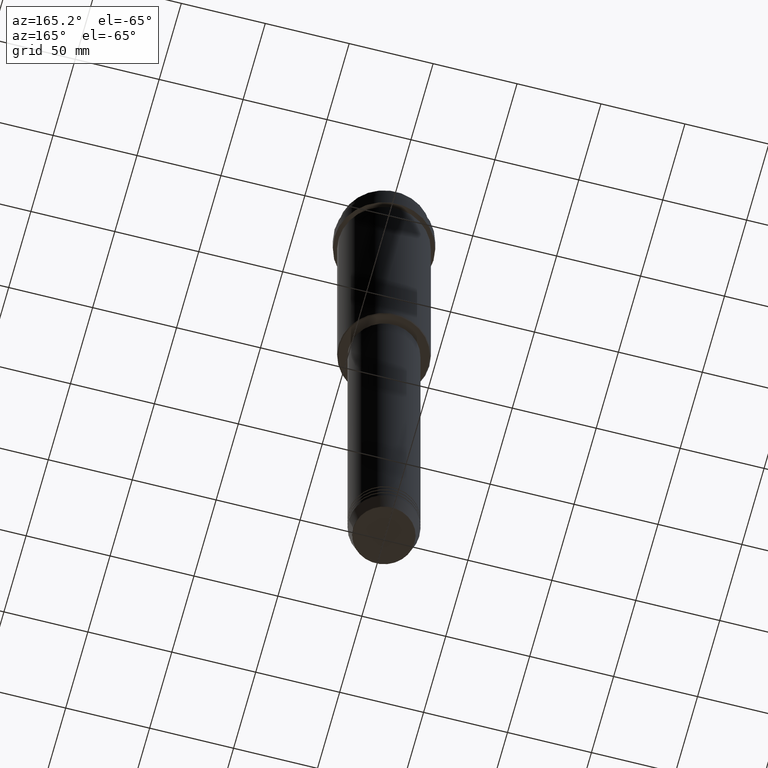
[diagram: clean part render]
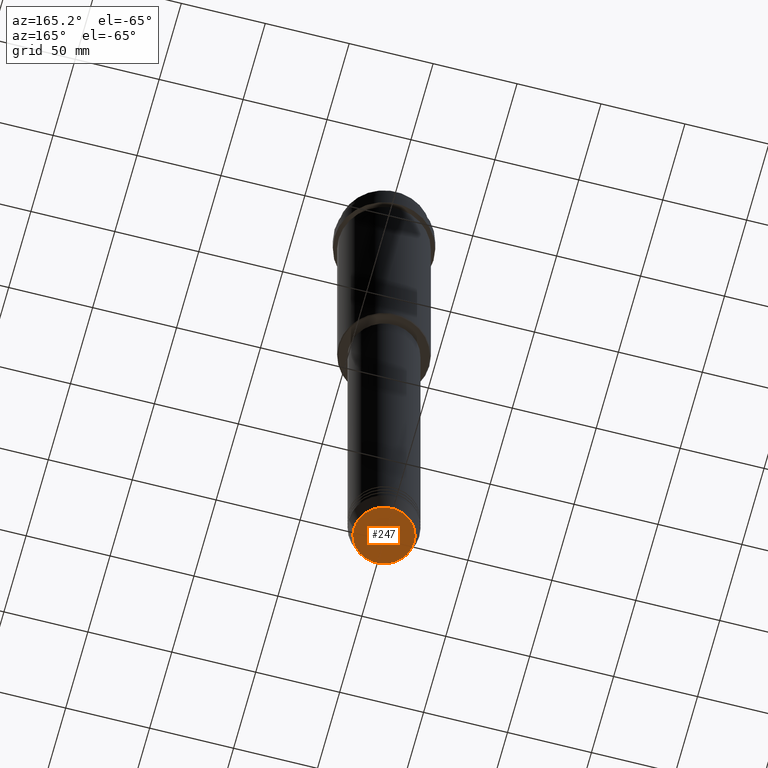
[diagram: same view with one face highlighted and labeled with its STEP entity id]
A machine part, auxiliary view. The second image highlights one B-rep face of the part: STEP entity #247.
In plain terms, the highlighted planar face has unit normal (0, -0, 1).
Its self-contained STEP definition (entity closure, byte-faithful):
#5 = EDGE_CURVE ( 'NONE', #1407, #331, #1352, .T. ) ;
#22 = DIRECTION ( 'NONE',  ( 1.000000000000000000, 0.000000000000000000, 0.000000000000000000 ) ) ;
#25 = DIRECTION ( 'NONE',  ( 1.000000000000000000, 0.000000000000000000, 0.000000000000000000 ) ) ;
#30 = DIRECTION ( 'NONE',  ( 0.000000000000000000, 0.000000000000000000, -1.000000000000000000 ) ) ;
#135 = CARTESIAN_POINT ( 'NONE',  ( 0.000000000000000000, 0.000000000000000000, -413.0000000000000000 ) ) ;
#171 = AXIS2_PLACEMENT_3D ( 'NONE', #370, #30, #25 ) ;
#197 = ORIENTED_EDGE ( 'NONE', *, *, #5, .T. ) ;
#247 = ADVANCED_FACE ( 'NONE', ( #1204 ), #1095, .F. ) ;
#331 = VERTEX_POINT ( 'NONE', #1402 ) ;
#347 = EDGE_CURVE ( 'NONE', #331, #1407, #582, .T. ) ;
#370 = CARTESIAN_POINT ( 'NONE',  ( 0.000000000000000000, 0.000000000000000000, -413.0000000000000000 ) ) ;
#390 = CARTESIAN_POINT ( 'NONE',  ( 17.93684458169929030, 0.000000000000000000, -413.0000000000000000 ) ) ;
#418 = CARTESIAN_POINT ( 'NONE',  ( 0.000000000000000000, 0.000000000000000000, -413.0000000000000000 ) ) ;
#568 = DIRECTION ( 'NONE',  ( 0.000000000000000000, -0.000000000000000000, 1.000000000000000000 ) ) ;
#570 = EDGE_LOOP ( 'NONE', ( #197, #1020 ) ) ;
#582 = CIRCLE ( 'NONE', #1027, 17.93684458169929030 ) ;
#1020 = ORIENTED_EDGE ( 'NONE', *, *, #347, .T. ) ;
#1027 = AXIS2_PLACEMENT_3D ( 'NONE', #418, #1158, #1380 ) ;
#1095 = PLANE ( 'NONE',  #1260 ) ;
#1158 = DIRECTION ( 'NONE',  ( 0.000000000000000000, 0.000000000000000000, -1.000000000000000000 ) ) ;
#1204 = FACE_OUTER_BOUND ( 'NONE', #570, .T. ) ;
#1260 = AXIS2_PLACEMENT_3D ( 'NONE', #135, #568, #22 ) ;
#1352 = CIRCLE ( 'NONE', #171, 17.93684458169929030 ) ;
#1380 = DIRECTION ( 'NONE',  ( 1.000000000000000000, 0.000000000000000000, 0.000000000000000000 ) ) ;
#1402 = CARTESIAN_POINT ( 'NONE',  ( -17.93684458169929030, 2.226202879662625134E-15, -413.0000000000000000 ) ) ;
#1407 = VERTEX_POINT ( 'NONE', #390 ) ;